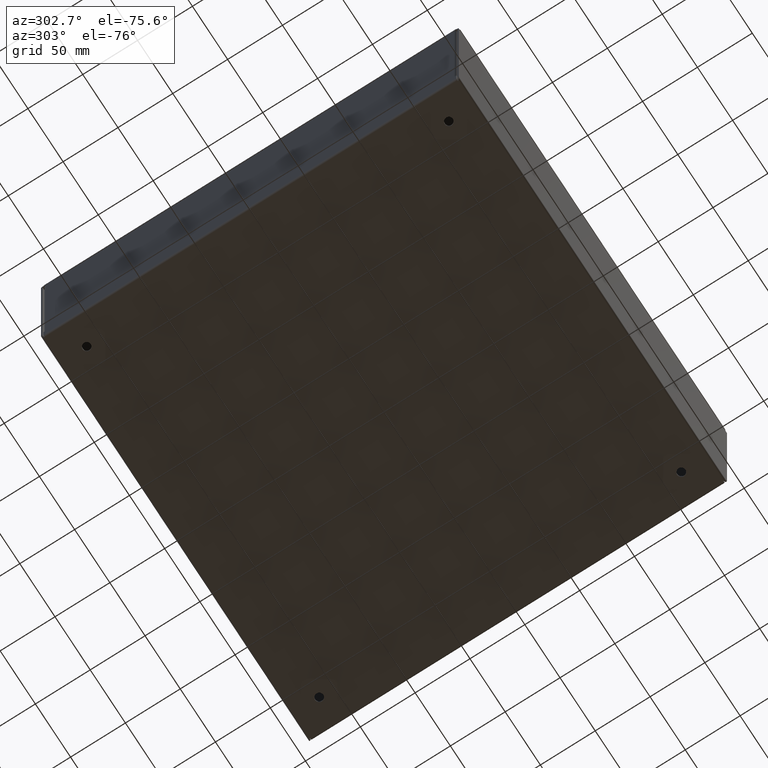
[diagram: clean part render]
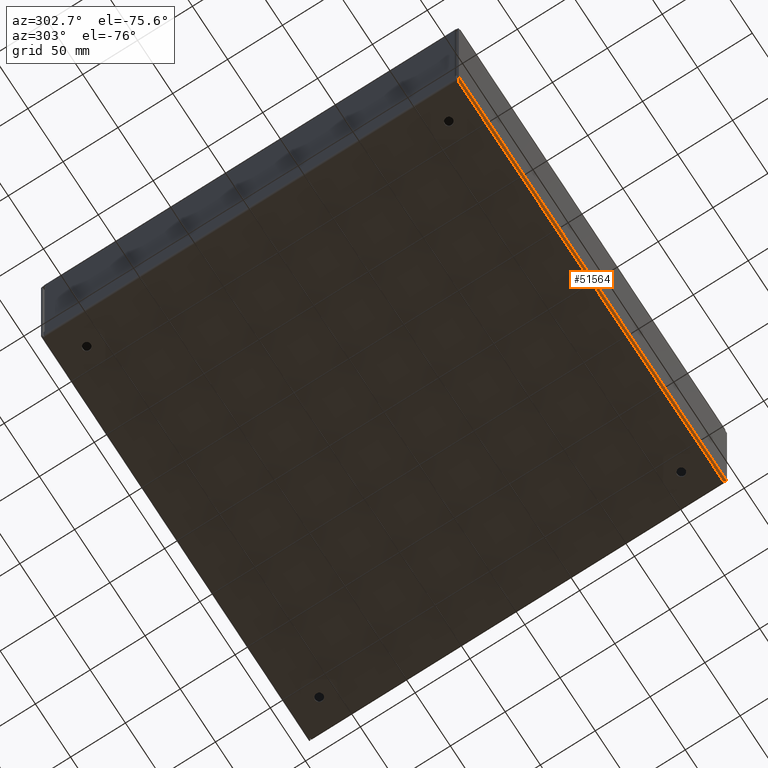
[diagram: same view with one face highlighted and labeled with its STEP entity id]
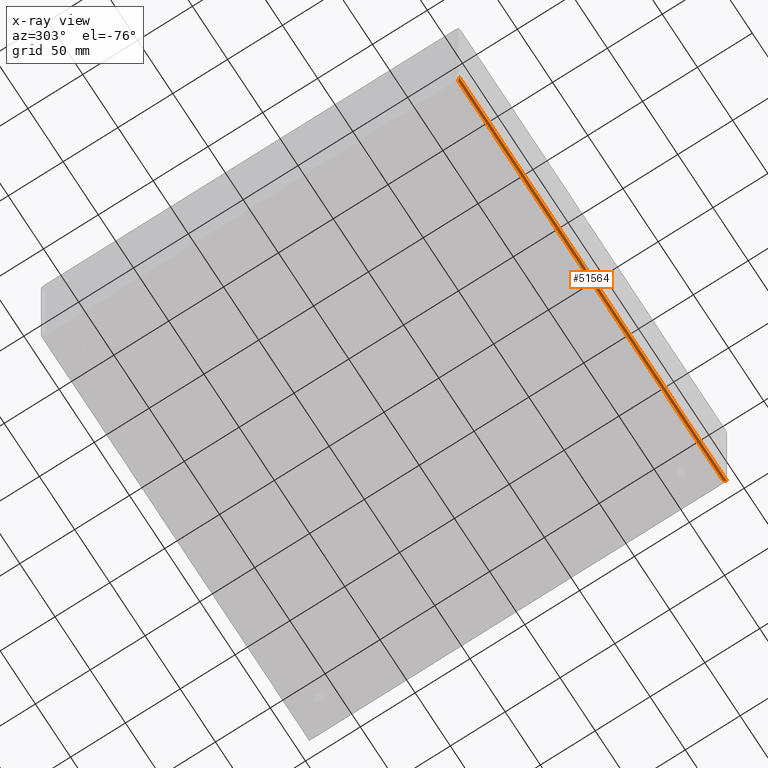
[diagram: x-ray of the same camera — body ghosted, the highlighted face saturated]
A machine part, auxiliary view. The second image highlights one B-rep face of the part: STEP entity #51564.
The next image is the same camera in x-ray: the body ghosted, the highlighted face saturated — about 0% of this face is hidden behind the body in this view.
In plain terms, the highlighted cylindrical surface (edge-blend (fillet) strip) has radius 2.1844 mm, axis along (-1, 0, 0).
Its self-contained STEP definition (entity closure, byte-faithful):
#2079=B_SPLINE_CURVE_WITH_KNOTS('',3,(#70496,#70497,#70498,#70499,#70500,
#70501,#70502,#70503,#70504,#70505),.UNSPECIFIED.,.F.,.F.,(4,2,2,2,4),(0.,
0.120121956112145,0.24019040700368,0.32418530768596,0.408181469031181),
 .UNSPECIFIED.);
#2080=B_SPLINE_CURVE_WITH_KNOTS('',3,(#70591,#70592,#70593,#70594,#70595,
#70596,#70597,#70598,#70599,#70600),.UNSPECIFIED.,.F.,.F.,(4,2,2,2,4),(0.,
0.120121956112205,0.24019040700363,0.324185307686188,0.408181469031586),
 .UNSPECIFIED.);
#6737=FACE_OUTER_BOUND('',#9619,.T.);
#9619=EDGE_LOOP('',(#38454,#38455,#38456,#38457));
#13137=LINE('',#70825,#18578);
#13138=LINE('',#70826,#18579);
#18578=VECTOR('',#59433,0.393700787401575);
#18579=VECTOR('',#59434,0.393700787401575);
#24478=VERTEX_POINT('',#70231);
#24499=VERTEX_POINT('',#70347);
#24511=VERTEX_POINT('',#70396);
#24513=VERTEX_POINT('',#70494);
#29866=EDGE_CURVE('',#24478,#24513,#2079,.T.);
#29867=EDGE_CURVE('',#24499,#24511,#2080,.T.);
#29878=EDGE_CURVE('',#24478,#24511,#13137,.T.);
#29879=EDGE_CURVE('',#24499,#24513,#13138,.T.);
#38454=ORIENTED_EDGE('',*,*,#29878,.F.);
#38455=ORIENTED_EDGE('',*,*,#29866,.T.);
#38456=ORIENTED_EDGE('',*,*,#29879,.F.);
#38457=ORIENTED_EDGE('',*,*,#29867,.T.);
#50987=CYLINDRICAL_SURFACE('',#54889,0.086);
#51564=ADVANCED_FACE('',(#6737),#50987,.T.);
#54889=AXIS2_PLACEMENT_3D('',#70824,#59431,#59432);
#59431=DIRECTION('center_axis',(-1.,0.,0.));
#59432=DIRECTION('ref_axis',(-4.51195539598743E-14,9.02391079197485E-14,
-1.));
#59433=DIRECTION('',(-1.,0.,0.));
#59434=DIRECTION('',(1.,1.03821105549905E-32,0.));
#70231=CARTESIAN_POINT('',(7.414,-7.414,0.));
#70347=CARTESIAN_POINT('',(-7.5,-7.5,0.086));
#70396=CARTESIAN_POINT('',(-7.414,-7.414,0.));
#70494=CARTESIAN_POINT('',(7.5,-7.5,0.086));
#70496=CARTESIAN_POINT('Ctrl Pts',(7.414,-7.41399999999999,7.32135262302023E-15));
#70497=CARTESIAN_POINT('Ctrl Pts',(7.42246641819869,-7.42729754117531,5.59118056454565E-15));
#70498=CARTESIAN_POINT('Ctrl Pts',(7.43081927034477,-7.44041588241052,0.00308415765143077));
#70499=CARTESIAN_POINT('Ctrl Pts',(7.44774701139582,-7.46422024053468,0.0149323864352494));
#70500=CARTESIAN_POINT('Ctrl Pts',(7.45609729969413,-7.47458620525029,0.0235340883944536));
#70501=CARTESIAN_POINT('Ctrl Pts',(7.47047892630169,-7.48820961811766,0.0415545749877269));
#70502=CARTESIAN_POINT('Ctrl Pts',(7.47636001421308,-7.49257725215386,0.0498326267349954));
#70503=CARTESIAN_POINT('Ctrl Pts',(7.48819936181205,-7.49849197005927,0.0674642767637883));
#70504=CARTESIAN_POINT('Ctrl Pts',(7.49407979604029,-7.5,0.0767015984714801));
#70505=CARTESIAN_POINT('Ctrl Pts',(7.5,-7.5,0.0860000000000588));
#70591=CARTESIAN_POINT('Ctrl Pts',(-7.5,-7.49999999999997,0.0860000000002905));
#70592=CARTESIAN_POINT('Ctrl Pts',(-7.49153358180129,-7.50000000000002,
0.0727024588249748));
#70593=CARTESIAN_POINT('Ctrl Pts',(-7.48318072965524,-7.49691584234863,
0.0595841175897457));
#70594=CARTESIAN_POINT('Ctrl Pts',(-7.46625298860423,-7.48506761356488,
0.0357797594655434));
#70595=CARTESIAN_POINT('Ctrl Pts',(-7.45790270030594,-7.47646591160571,
0.0254137947499202));
#70596=CARTESIAN_POINT('Ctrl Pts',(-7.44352107369838,-7.45844542501248,
0.0117903818824899));
#70597=CARTESIAN_POINT('Ctrl Pts',(-7.43763998578697,-7.4501673732652,0.00742274784625551));
#70598=CARTESIAN_POINT('Ctrl Pts',(-7.42580063818797,-7.43253572323633,
0.00150802994077888));
#70599=CARTESIAN_POINT('Ctrl Pts',(-7.41992020395972,-7.4232984015286,3.24338500826301E-14));
#70600=CARTESIAN_POINT('Ctrl Pts',(-7.414,-7.41399999999999,3.34924564023239E-14));
#70824=CARTESIAN_POINT('Origin',(0.,-7.414,0.086));
#70825=CARTESIAN_POINT('',(-3.75,-7.414,0.));
#70826=CARTESIAN_POINT('',(3.75,-7.5,0.0860000000000001));